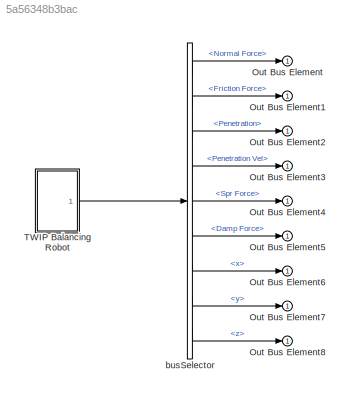
MODEL slx_5a56348b3bac
KIND model
CONFIG AbsTol = 1e-5
CONFIG EnableMultiTasking = on
CONFIG FixedStep = 1e-3
CONFIG MaxStep = 0.01
CONFIG MinStep = auto
CONFIG RelTol = 1e-4
CONFIG SampleTimeConstraint = Unconstrained
CONFIG Solver = ode23t
CONFIG SolverName = ode23t
CONFIG StartFcn = tic;
CONFIG StartTime = 0.0
CONFIG StopFcn = Elapsed_Sim_Time = toc;\ndisp(['Elapsed Sim Time = ' num2str(Elapsed_Sim_Time)]);\n
CONFIG StopTime = 13
WORKSPACE source: mxarray member
WORKSPACE l_whl_trq = [0 0 0 0.00025 0 0 0 -0.00025 0.0005 0 0 0 ... (23 elements, 23x1)]
WORKSPACE r_whl_trq = [0 0 0 0.001 0 0 0 -0.001 0.0005 0 0 0 ... (23 elements, 23x1)]
WORKSPACE table: object (value not decoded)
WORKSPACE tableWhl: contact (value not decoded)
WORKSPACE whl: object (value not decoded)
BLOCK [Outport] Out Bus Element
BLOCK [Outport] Out Bus Element1
BLOCK [Outport] Out Bus Element2
BLOCK [Outport] Out Bus Element3
BLOCK [Outport] Out Bus Element4
BLOCK [Outport] Out Bus Element5
BLOCK [Outport] Out Bus Element6
BLOCK [Outport] Out Bus Element7
BLOCK [Outport] Out Bus Element8
BLOCK [SubSystem] TWIP Balancing Robot
  Ports = [0, 1]
  ReferencedSubsystem = TWIP_Balancing_Robot
  RequestExecContextInheritance = off
  TreatAsAtomicUnit = on
BLOCK [BusSelector] busSelector
  OutputSignals = Normal Force,Friction Force,Penetration,Penetration Vel,Spr Force,Damp Force,Frame Sep.x,Frame Sep.y,Frame Sep.z
  Ports = [1, 9]
LINE TWIP Balancing Robot:1 -> busSelector:1
LINE busSelector:1 -> Out Bus Element:1
LINE busSelector:2 -> Out Bus Element1:1
LINE busSelector:3 -> Out Bus Element2:1
LINE busSelector:4 -> Out Bus Element3:1
LINE busSelector:5 -> Out Bus Element4:1
LINE busSelector:6 -> Out Bus Element5:1
LINE busSelector:7 -> Out Bus Element6:1
LINE busSelector:8 -> Out Bus Element7:1
LINE busSelector:9 -> Out Bus Element8:1
